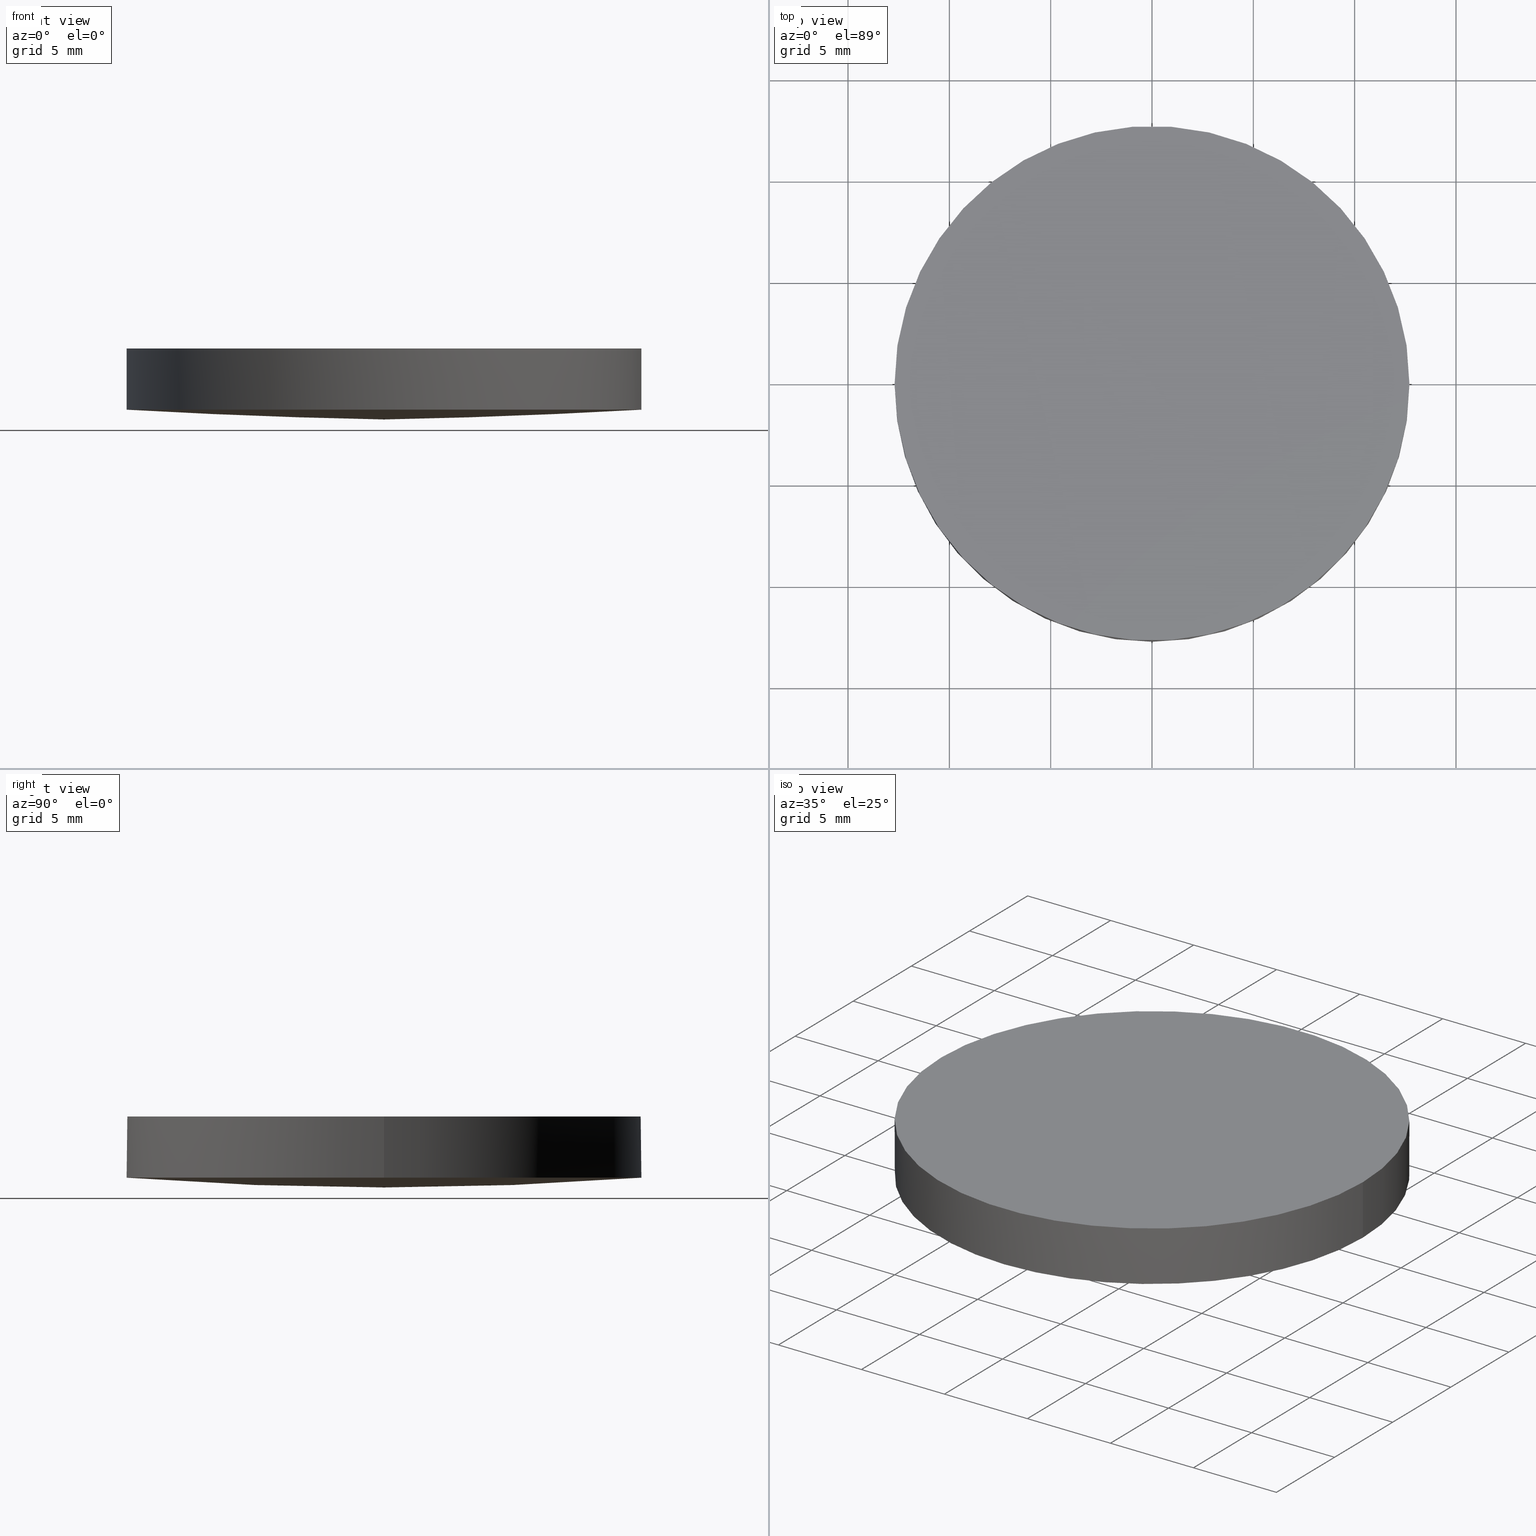
[diagram: canonical four-view strip — front | top / right | iso, engineering-drawing reading convention]
A machine part, canonical four-view strip (front | top / right | iso — engineering-drawing reading convention). The complete STEP part file that produces these views, byte-faithful:
ISO-10303-21;
HEADER;
FILE_DESCRIPTION (( 'STEP AP203' ),
    '1' );
FILE_NAME ('110-5228E CaF2 pl-cx 25.4 F400.STEP',
    '2019-01-03T11:23:20',
    ( '' ),
    ( '' ),
    'SwSTEP 2.0',
    'SolidWorks 2017',
    '' );
FILE_SCHEMA (( 'CONFIG_CONTROL_DESIGN' ));
ENDSEC;

DATA;
#1 = DATE_TIME_ROLE ( 'creation_date' ) ;
#2 = LOCAL_TIME ( 13, 23, 20.00000000000000000, #144 ) ;
#3 = APPROVAL_STATUS ( 'not_yet_approved' ) ;
#4 = CARTESIAN_POINT ( 'NONE',  ( 4.566836338319999000E-014, 12.69999999999989300, 0.4827347065058701400 ) ) ;
#5 = VECTOR ( 'NONE', #23, 1000.000000000000000 ) ;
#6 = UNCERTAINTY_MEASURE_WITH_UNIT (LENGTH_MEASURE( 1.000000000000000100E-005 ), #88, 'distance_accuracy_value', 'NONE');
#7 = CARTESIAN_POINT ( 'NONE',  ( 4.251272293049448900, -12.85210128437011600, 0.4943841095981241800 ) ) ;
#8 = ORIENTED_EDGE ( 'NONE', *, *, #153, .T. ) ;
#9 = DIRECTION ( 'NONE',  ( 1.000000000000000000, 0.0000000000000000000, -0.0000000000000000000 ) ) ;
#10 = CARTESIAN_POINT ( 'NONE',  ( -8.533044335085556000, 4.292490182803529600, -0.002032512706871977000 ) ) ;
#11 = CARTESIAN_POINT ( 'NONE',  ( -12.73829777343129700, -12.85210128437012300, 0.9814825029645646300 ) ) ;
#12 = VERTEX_POINT ( 'NONE', #80 ) ;
#13 =( NAMED_UNIT ( * ) PLANE_ANGLE_UNIT ( ) SI_UNIT ( $, .RADIAN. ) );
#14 = AXIS2_PLACEMENT_3D ( 'NONE', #140, #34, #103 ) ;
#15 = DESIGN_CONTEXT ( 'detailed design', #73, 'design' ) ;
#16 = ORIENTED_EDGE ( 'NONE', *, *, #153, .F. ) ;
#17 = CIRCLE ( 'NONE', #42, 12.69999999999999900 ) ;
#18 = APPROVAL_DATE_TIME ( #25, #192 ) ;
#19 = PERSON_AND_ORGANIZATION_ROLE ( 'design_owner' ) ;
#20 = PERSON_AND_ORGANIZATION_ROLE ( 'creator' ) ;
#21 = CIRCLE ( 'NONE', #112, 12.69999999999999900 ) ;
#22 = APPROVAL_STATUS ( 'not_yet_approved' ) ;
#23 = DIRECTION ( 'NONE',  ( 0.0000000000000000000, 0.0000000000000000000, 1.000000000000000000 ) ) ;
#24 = ORIENTED_EDGE ( 'NONE', *, *, #29, .F. ) ;
#25 = DATE_AND_TIME ( #132, #2 ) ;
#26 = CC_DESIGN_APPROVAL ( #138, ( #40 ) ) ;
#27 = VERTEX_POINT ( 'NONE', #4 ) ;
#28 = CARTESIAN_POINT ( 'NONE',  ( 0.0000000000000000000, 0.0000000000000000000, 167.3000000000000100 ) ) ;
#29 = EDGE_CURVE ( 'NONE', #63, #216, #119, .T. ) ;
#30 = CARTESIAN_POINT ( 'NONE',  ( 4.996003610813200500E-016, 2.442490654175340100E-015, 0.4827347065058740800 ) ) ;
#31 = CARTESIAN_POINT ( 'NONE',  ( -12.78866154361474200, 4.292490182803529600, 0.3239042502452720900 ) ) ;
#32 = ORIENTED_EDGE ( 'NONE', *, *, #110, .T. ) ;
#33 = CARTESIAN_POINT ( 'NONE',  ( -8.499439857995314500, 12.85210128437013200, 0.6568293304935412000 ) ) ;
#34 = DIRECTION ( 'NONE',  ( -0.0000000000000000000, -0.0000000000000000000, -1.000000000000000000 ) ) ;
#35 = PERSON_AND_ORGANIZATION ( #208, #43 ) ;
#36 = COORDINATED_UNIVERSAL_TIME_OFFSET ( 2, 0, .AHEAD. ) ;
#37 = EDGE_LOOP ( 'NONE', ( #32, #124, #220 ) ) ;
#38 = APPLICATION_PROTOCOL_DEFINITION ( 'international standard', 'config_control_design', 1994, #183 ) ;
#39 = LOCAL_TIME ( 13, 23, 20.00000000000000000, #142 ) ;
#40 = PRODUCT_DEFINITION_FORMATION_WITH_SPECIFIED_SOURCE ( 'ANY', '', #77, .NOT_KNOWN. ) ;
#41 = MECHANICAL_CONTEXT ( 'NONE', #183, 'mechanical' ) ;
#42 = AXIS2_PLACEMENT_3D ( 'NONE', #30, #175, #233 ) ;
#43 = ORGANIZATION ( 'UNSPECIFIED', 'UNSPECIFIED', '' ) ;
#44 = CARTESIAN_POINT ( 'NONE',  ( 12.69999999999999900, 2.442490654175340100E-015, 0.4827347065058740800 ) ) ;
#45 = CARTESIAN_POINT ( 'NONE',  ( 4.996003610813200500E-016, 2.442490654175340100E-015, 0.4827347065058740800 ) ) ;
#46 = CARTESIAN_POINT ( 'NONE',  ( 4.996003610813200500E-016, 2.442490654175340100E-015, 0.4827347065058740800 ) ) ;
#47 = CALENDAR_DATE ( 2019, 3, 1 ) ;
#48 = FACE_OUTER_BOUND ( 'NONE', #160, .T. ) ;
#49 = CARTESIAN_POINT ( 'NONE',  ( -8.499439857995303900, -12.85210128437012100, 0.6568293304935412000 ) ) ;
#50 = EDGE_CURVE ( 'NONE', #145, #27, #53, .T. ) ;
#51 =( NAMED_UNIT ( * ) SI_UNIT ( $, .STERADIAN. ) SOLID_ANGLE_UNIT ( ) );
#52 = COORDINATED_UNIVERSAL_TIME_OFFSET ( 2, 0, .AHEAD. ) ;
#53 = CIRCLE ( 'NONE', #226, 167.3000000000000100 ) ;
#54 = APPROVAL_PERSON_ORGANIZATION ( #202, #192, #126 ) ;
#55 = CLOSED_SHELL ( 'NONE', ( #159, #232, #163, #116, #121 ) ) ;
#56 = ORIENTED_EDGE ( 'NONE', *, *, #91, .T. ) ;
#57 = DATE_TIME_ROLE ( 'classification_date' ) ;
#58 = EDGE_LOOP ( 'NONE', ( #149, #235, #71 ) ) ;
#59 = DIRECTION ( 'NONE',  ( 1.000000000000000000, 0.0000000000000000000, 0.0000000000000000000 ) ) ;
#60 = DIRECTION ( 'NONE',  ( -0.0000000000000000000, -0.0000000000000000000, -1.000000000000000000 ) ) ;
#61 = APPROVAL ( #3, 'UNSPECIFIED' ) ;
#62 = DIRECTION ( 'NONE',  ( 1.000000000000000000, 0.0000000000000000000, 0.0000000000000000000 ) ) ;
#63 = VERTEX_POINT ( 'NONE', #97 ) ;
#64 = CARTESIAN_POINT ( 'NONE',  ( 12.78866154361464400, 4.292490182803538400, 0.3239042502452546000 ) ) ;
#65 = CARTESIAN_POINT ( 'NONE',  ( 8.533044335085511600, 4.292490182803535800, -0.002032512706883035800 ) ) ;
#66 = CC_DESIGN_PERSON_AND_ORGANIZATION_ASSIGNMENT ( #186, #19, ( #77 ) ) ;
#67 = PLANE ( 'NONE',  #146 ) ;
#68 = CARTESIAN_POINT ( 'NONE',  ( 8.499439857995271900, -12.85210128437011400, 0.6568293304935302100 ) ) ;
#69 = CARTESIAN_POINT ( 'NONE',  ( 0.0000000000000000000, 0.0000000000000000000, 0.0000000000000000000 ) ) ;
#70 = EDGE_CURVE ( 'NONE', #145, #63, #205, .T. ) ;
#71 = ORIENTED_EDGE ( 'NONE', *, *, #93, .T. ) ;
#72 = ORIENTED_EDGE ( 'NONE', *, *, #128, .T. ) ;
#73 = APPLICATION_CONTEXT ( 'configuration controlled 3d designs of mechanical parts and assemblies' ) ;
#74 =( BOUNDED_SURFACE ( )  B_SPLINE_SURFACE ( 3, 3, ( 
 ( #227, #7, #68, #178 ),
 ( #214, #195, #200, #213 ),
 ( #86, #215, #65, #64 ),
 ( #81, #135, #231, #229 ) ),
 .UNSPECIFIED., .F., .F., .F. ) 
 B_SPLINE_SURFACE_WITH_KNOTS ( ( 4, 4 ),
 ( 4, 4 ),
 ( 0.0000000000000000000, 1.000000000000000000 ),
 ( 0.0000000000000000000, 1.000000000000000000 ),
 .UNSPECIFIED. ) 
 GEOMETRIC_REPRESENTATION_ITEM ( )  RATIONAL_B_SPLINE_SURFACE ( (
 ( 1.000000000000000000, 0.9995131295779148300, 0.9995131295779148300, 1.000000000000000000),
 ( 0.9980299497525477700, 0.9975440384896581100, 0.9975440384896581100, 0.9980299497525477700),
 ( 0.9980299497525477700, 0.9975440384896581100, 0.9975440384896581100, 0.9980299497525477700),
 ( 1.000000000000000000, 0.9995131295779148300, 0.9995131295779148300, 1.000000000000000000) ) ) 
 REPRESENTATION_ITEM ( '' )  SURFACE ( )  );
#75 = ORIENTED_EDGE ( 'NONE', *, *, #78, .F. ) ;
#76 = DIRECTION ( 'NONE',  ( 1.000000000000000000, 0.0000000000000000000, 0.0000000000000000000 ) ) ;
#77 = PRODUCT ( '110-5228E CaF2 pl-cx 25.4 F400', '110-5228E CaF2 pl-cx 25.4 F400', '', ( #41 ) ) ;
#78 = EDGE_CURVE ( 'NONE', #27, #96, #210, .T. ) ;
#79 = PERSON_AND_ORGANIZATION ( #208, #43 ) ;
#80 = CARTESIAN_POINT ( 'NONE',  ( 12.69999999999999900, 2.442490654175340100E-015, 3.500000000000000000 ) ) ;
#81 = CARTESIAN_POINT ( 'NONE',  ( 4.561202874315415500E-014, 12.85210128437013400, 0.4943841095981227300 ) ) ;
#82 = CARTESIAN_POINT ( 'NONE',  ( -12.78866154361473800, -4.292490182803522500, 0.3239042502452730300 ) ) ;
#83 = FACE_OUTER_BOUND ( 'NONE', #58, .T. ) ;
#84 = CALENDAR_DATE ( 2019, 3, 1 ) ;
#85 = AXIS2_PLACEMENT_3D ( 'NONE', #115, #148, #59 ) ;
#86 = CARTESIAN_POINT ( 'NONE',  ( 4.878348029230784500E-014, 4.292490182803534000, -0.1651199978920794300 ) ) ;
#87 = CARTESIAN_POINT ( 'NONE',  ( 4.996003610813200500E-016, 2.442490654175340100E-015, 0.4827347065058740800 ) ) ;
#88 =( LENGTH_UNIT ( ) NAMED_UNIT ( * ) SI_UNIT ( .MILLI., .METRE. ) );
#89 = SHAPE_DEFINITION_REPRESENTATION ( #194, #206 ) ;
#90 = DATE_AND_TIME ( #120, #39 ) ;
#91 = EDGE_CURVE ( 'NONE', #216, #12, #21, .T. ) ;
#92 = APPLICATION_PROTOCOL_DEFINITION ( 'international standard', 'config_control_design', 1994, #73 ) ;
#93 = EDGE_CURVE ( 'NONE', #63, #27, #122, .T. ) ;
#94 = PERSON_AND_ORGANIZATION_ROLE ( 'design_supplier' ) ;
#95 = PERSON_AND_ORGANIZATION_ROLE ( 'creator' ) ;
#96 = VERTEX_POINT ( 'NONE', #44 ) ;
#97 = CARTESIAN_POINT ( 'NONE',  ( -12.69999999999999900, 3.997792089092478900E-015, 0.4827347065058740800 ) ) ;
#98 = DIRECTION ( 'NONE',  ( -0.0000000000000000000, -0.0000000000000000000, -1.000000000000000000 ) ) ;
#99 = APPROVAL_PERSON_ORGANIZATION ( #35, #61, #170 ) ;
#100 = DATE_AND_TIME ( #104, #221 ) ;
#101 = AXIS2_PLACEMENT_3D ( 'NONE', #46, #211, #76 ) ;
#102 = ORIENTED_EDGE ( 'NONE', *, *, #70, .F. ) ;
#103 = DIRECTION ( 'NONE',  ( 1.000000000000000000, 0.0000000000000000000, 0.0000000000000000000 ) ) ;
#104 = CALENDAR_DATE ( 2019, 3, 1 ) ;
#105 = CARTESIAN_POINT ( 'NONE',  ( -4.268080669220456300, -4.292490182803518000, -0.1651199978920573900 ) ) ;
#106 = CARTESIAN_POINT ( 'NONE',  ( 4.996003610813200500E-016, 2.442490654175340100E-015, 3.500000000000000000 ) ) ;
#107 = CARTESIAN_POINT ( 'NONE',  ( 0.0000000000000000000, 26.11199999999999800, 3.500000000000000000 ) ) ;
#108 = ORIENTED_EDGE ( 'NONE', *, *, #91, .F. ) ;
#109 = DIRECTION ( 'NONE',  ( 1.000000000000000000, 0.0000000000000000000, 0.0000000000000000000 ) ) ;
#110 = EDGE_CURVE ( 'NONE', #96, #145, #17, .T. ) ;
#111 = ORIENTED_EDGE ( 'NONE', *, *, #110, .F. ) ;
#112 = AXIS2_PLACEMENT_3D ( 'NONE', #152, #60, #193 ) ;
#113 = AXIS2_PLACEMENT_3D ( 'NONE', #106, #174, #62 ) ;
#114 = CC_DESIGN_DATE_AND_TIME_ASSIGNMENT ( #172, #1, ( #117 ) ) ;
#115 = CARTESIAN_POINT ( 'NONE',  ( 4.996003610813200500E-016, 2.442490654175340100E-015, 0.4827347065058740800 ) ) ;
#116 = ADVANCED_FACE ( 'NONE', ( #201 ), #197, .T. ) ;
#117 = PRODUCT_DEFINITION ( 'UNKNOWN', '', #40, #15 ) ;
#118 = CARTESIAN_POINT ( 'NONE',  ( 1.214306433183765000E-014, -4.292490182803518000, -0.1651199978920570900 ) ) ;
#119 = LINE ( 'NONE', #133, #5 ) ;
#120 = CALENDAR_DATE ( 2019, 3, 1 ) ;
#121 = ADVANCED_FACE ( 'NONE', ( #48 ), #67, .T. ) ;
#122 = CIRCLE ( 'NONE', #14, 12.69999999999999900 ) ;
#123 = AXIS2_PLACEMENT_3D ( 'NONE', #69, #218, #162 ) ;
#124 = ORIENTED_EDGE ( 'NONE', *, *, #50, .T. ) ;
#125 = CC_DESIGN_PERSON_AND_ORGANIZATION_ASSIGNMENT ( #230, #222, ( #219 ) ) ;
#126 = APPROVAL_ROLE ( '' ) ;
#127 = PERSON_AND_ORGANIZATION ( #208, #43 ) ;
#128 = EDGE_CURVE ( 'NONE', #96, #12, #177, .T. ) ;
#129 = SECURITY_CLASSIFICATION_LEVEL ( 'unclassified' ) ;
#130 = CC_DESIGN_SECURITY_CLASSIFICATION ( #219, ( #40 ) ) ;
#131 = EDGE_LOOP ( 'NONE', ( #188, #169, #56, #154, #75 ) ) ;
#132 = CALENDAR_DATE ( 2019, 3, 1 ) ;
#133 = CARTESIAN_POINT ( 'NONE',  ( -12.69999999999999900, 3.997792089092478900E-015, 0.4827347065058740800 ) ) ;
#134 = COORDINATED_UNIVERSAL_TIME_OFFSET ( 2, 0, .AHEAD. ) ;
#135 = CARTESIAN_POINT ( 'NONE',  ( 4.251272293049440900, 12.85210128437013700, 0.4943841095981241800 ) ) ;
#136 = FACE_OUTER_BOUND ( 'NONE', #131, .T. ) ;
#137 = CARTESIAN_POINT ( 'NONE',  ( -4.268080669220459800, 4.292490182803530500, -0.1651199978920584700 ) ) ;
#138 = APPROVAL ( #22, 'UNSPECIFIED' ) ;
#139 = CARTESIAN_POINT ( 'NONE',  ( -12.73829777343130800, 12.85210128437012900, 0.9814825029645646300 ) ) ;
#140 = CARTESIAN_POINT ( 'NONE',  ( 4.996003610813200500E-016, 2.442490654175340100E-015, 0.4827347065058740800 ) ) ;
#141 = LOCAL_TIME ( 13, 23, 20.00000000000000000, #52 ) ;
#142 = COORDINATED_UNIVERSAL_TIME_OFFSET ( 2, 0, .AHEAD. ) ;
#143 = EDGE_LOOP ( 'NONE', ( #24, #102, #111, #72, #8 ) ) ;
#144 = COORDINATED_UNIVERSAL_TIME_OFFSET ( 2, 0, .AHEAD. ) ;
#145 = VERTEX_POINT ( 'NONE', #161 ) ;
#146 = AXIS2_PLACEMENT_3D ( 'NONE', #107, #156, #9 ) ;
#147 = PRODUCT_RELATED_PRODUCT_CATEGORY ( 'detail', '', ( #77 ) ) ;
#148 = DIRECTION ( 'NONE',  ( -0.0000000000000000000, -0.0000000000000000000, -1.000000000000000000 ) ) ;
#149 = ORIENTED_EDGE ( 'NONE', *, *, #50, .F. ) ;
#150 = DATE_AND_TIME ( #47, #141 ) ;
#151 = CC_DESIGN_PERSON_AND_ORGANIZATION_ASSIGNMENT ( #127, #20, ( #117 ) ) ;
#152 = CARTESIAN_POINT ( 'NONE',  ( 4.996003610813200500E-016, 2.442490654175340100E-015, 3.500000000000000000 ) ) ;
#153 = EDGE_CURVE ( 'NONE', #12, #216, #204, .T. ) ;
#154 = ORIENTED_EDGE ( 'NONE', *, *, #128, .F. ) ;
#155 = CARTESIAN_POINT ( 'NONE',  ( 12.69999999999999900, 2.442490654175340100E-015, 0.4827347065058740800 ) ) ;
#156 = DIRECTION ( 'NONE',  ( 0.0000000000000000000, 0.0000000000000000000, 1.000000000000000000 ) ) ;
#157 = CARTESIAN_POINT ( 'NONE',  ( 8.673617379884033900E-015, 4.292490182803533100, -0.1651199978920582000 ) ) ;
#158 = CARTESIAN_POINT ( 'NONE',  ( -4.251272293049442700, 12.85210128437013400, 0.4943841095981438300 ) ) ;
#159 = ADVANCED_FACE ( 'NONE', ( #165 ), #74, .T. ) ;
#160 = EDGE_LOOP ( 'NONE', ( #16, #108 ) ) ;
#161 = CARTESIAN_POINT ( 'NONE',  ( 5.449188795093373900E-014, -12.69999999999989300, 0.4827347065058701400 ) ) ;
#162 = DIRECTION ( 'NONE',  ( 1.000000000000000000, 0.0000000000000000000, 0.0000000000000000000 ) ) ;
#163 = ADVANCED_FACE ( 'NONE', ( #83 ), #171, .T. ) ;
#164 = CC_DESIGN_PERSON_AND_ORGANIZATION_ASSIGNMENT ( #191, #95, ( #40 ) ) ;
#165 = FACE_OUTER_BOUND ( 'NONE', #37, .T. ) ;
#166 = AXIS2_PLACEMENT_3D ( 'NONE', #87, #203, #109 ) ;
#167 = LOCAL_TIME ( 13, 23, 20.00000000000000000, #134 ) ;
#168 = AXIS2_PLACEMENT_3D ( 'NONE', #45, #98, #225 ) ;
#169 = ORIENTED_EDGE ( 'NONE', *, *, #29, .T. ) ;
#170 = APPROVAL_ROLE ( '' ) ;
#171 =( BOUNDED_SURFACE ( )  B_SPLINE_SURFACE ( 3, 3, ( 
 ( #11, #49, #198, #176 ),
 ( #82, #217, #105, #118 ),
 ( #31, #10, #137, #157 ),
 ( #139, #33, #158, #182 ) ),
 .UNSPECIFIED., .F., .F., .F. ) 
 B_SPLINE_SURFACE_WITH_KNOTS ( ( 4, 4 ),
 ( 4, 4 ),
 ( 0.0000000000000000000, 1.000000000000000000 ),
 ( 0.0000000000000000000, 1.000000000000000000 ),
 .UNSPECIFIED. ) 
 GEOMETRIC_REPRESENTATION_ITEM ( )  RATIONAL_B_SPLINE_SURFACE ( (
 ( 1.000000000000000000, 0.9995131295779148300, 0.9995131295779148300, 1.000000000000000000),
 ( 0.9980299497525477700, 0.9975440384896581100, 0.9975440384896581100, 0.9980299497525477700),
 ( 0.9980299497525477700, 0.9975440384896581100, 0.9975440384896581100, 0.9980299497525477700),
 ( 1.000000000000000000, 0.9995131295779148300, 0.9995131295779148300, 1.000000000000000000) ) ) 
 REPRESENTATION_ITEM ( '' )  SURFACE ( )  );
#172 = DATE_AND_TIME ( #84, #167 ) ;
#173 = DIRECTION ( 'NONE',  ( 1.000000000000000000, 3.473828569973949900E-016, 3.002094871832189900E-016 ) ) ;
#174 = DIRECTION ( 'NONE',  ( -0.0000000000000000000, -0.0000000000000000000, -1.000000000000000000 ) ) ;
#175 = DIRECTION ( 'NONE',  ( -0.0000000000000000000, -0.0000000000000000000, -1.000000000000000000 ) ) ;
#176 = CARTESIAN_POINT ( 'NONE',  ( 1.387778780781445700E-014, -12.85210128437011800, 0.4943841095981441100 ) ) ;
#177 = LINE ( 'NONE', #155, #212 ) ;
#178 = CARTESIAN_POINT ( 'NONE',  ( 12.73829777343121200, -12.85210128437011300, 0.9814825029645473100 ) ) ;
#179 = PERSON_AND_ORGANIZATION ( #208, #43 ) ;
#180 = MANIFOLD_SOLID_BREP ( 'Imported1', #55 ) ;
#181 = CC_DESIGN_APPROVAL ( #61, ( #117 ) ) ;
#182 = CARTESIAN_POINT ( 'NONE',  ( 3.469446951953614200E-015, 12.85210128437013400, 0.4943841095981438800 ) ) ;
#183 = APPLICATION_CONTEXT ( 'configuration controlled 3d designs of mechanical parts and assemblies' ) ;
#184 = CC_DESIGN_PERSON_AND_ORGANIZATION_ASSIGNMENT ( #179, #94, ( #40 ) ) ;
#185 = CYLINDRICAL_SURFACE ( 'NONE', #166, 12.69999999999999900 ) ;
#186 = PERSON_AND_ORGANIZATION ( #208, #43 ) ;
#187 = APPROVAL_DATE_TIME ( #150, #61 ) ;
#188 = ORIENTED_EDGE ( 'NONE', *, *, #93, .F. ) ;
#189 = APPROVAL_PERSON_ORGANIZATION ( #79, #138, #223 ) ;
#190 = DIRECTION ( 'NONE',  ( 3.473828569973949900E-016, -1.000000000000000000, 0.0000000000000000000 ) ) ;
#191 = PERSON_AND_ORGANIZATION ( #208, #43 ) ;
#192 = APPROVAL ( #207, 'UNSPECIFIED' ) ;
#193 = DIRECTION ( 'NONE',  ( 1.000000000000000000, 0.0000000000000000000, 0.0000000000000000000 ) ) ;
#194 = PRODUCT_DEFINITION_SHAPE ( 'NONE', 'NONE',  #117 ) ;
#195 = CARTESIAN_POINT ( 'NONE',  ( 4.268080669220469600, -4.292490182803513600, -0.1651199978920772100 ) ) ;
#196 = CARTESIAN_POINT ( 'NONE',  ( -12.69999999999999900, 3.997792089092478900E-015, 3.500000000000000000 ) ) ;
#197 = CYLINDRICAL_SURFACE ( 'NONE', #101, 12.69999999999999900 ) ;
#198 = CARTESIAN_POINT ( 'NONE',  ( -4.251272293049432900, -12.85210128437012000, 0.4943841095981439900 ) ) ;
#199 = DIRECTION ( 'NONE',  ( 0.0000000000000000000, 0.0000000000000000000, 1.000000000000000000 ) ) ;
#200 = CARTESIAN_POINT ( 'NONE',  ( 8.533044335085515200, -4.292490182803512700, -0.002032512706882005800 ) ) ;
#201 = FACE_OUTER_BOUND ( 'NONE', #143, .T. ) ;
#202 = PERSON_AND_ORGANIZATION ( #208, #43 ) ;
#203 = DIRECTION ( 'NONE',  ( 0.0000000000000000000, 0.0000000000000000000, 1.000000000000000000 ) ) ;
#204 = CIRCLE ( 'NONE', #113, 12.69999999999999900 ) ;
#205 = CIRCLE ( 'NONE', #85, 12.69999999999999900 ) ;
#206 = ADVANCED_BREP_SHAPE_REPRESENTATION ( '110-5228E CaF2 pl-cx 25.4 F400', ( #180, #123 ), #234 ) ;
#207 = APPROVAL_STATUS ( 'not_yet_approved' ) ;
#208 = PERSON ( 'UNSPECIFIED', 'UNSPECIFIED', 'UNSPECIFIED', ('UNSPECIFIED'), ('UNSPECIFIED'), ('UNSPECIFIED') ) ;
#209 = CC_DESIGN_DATE_AND_TIME_ASSIGNMENT ( #90, #57, ( #219 ) ) ;
#210 = CIRCLE ( 'NONE', #168, 12.69999999999999900 ) ;
#211 = DIRECTION ( 'NONE',  ( 0.0000000000000000000, 0.0000000000000000000, 1.000000000000000000 ) ) ;
#212 = VECTOR ( 'NONE', #199, 1000.000000000000000 ) ;
#213 = CARTESIAN_POINT ( 'NONE',  ( 12.78866154361464600, -4.292490182803512700, 0.3239042502452556000 ) ) ;
#214 = CARTESIAN_POINT ( 'NONE',  ( 5.176575529897896200E-014, -4.292490182803517100, -0.1651199978920784600 ) ) ;
#215 = CARTESIAN_POINT ( 'NONE',  ( 4.268080669220465100, 4.292490182803534900, -0.1651199978920781800 ) ) ;
#216 = VERTEX_POINT ( 'NONE', #196 ) ;
#217 = CARTESIAN_POINT ( 'NONE',  ( -8.533044335085552500, -4.292490182803518900, -0.002032512706871001200 ) ) ;
#218 = DIRECTION ( 'NONE',  ( 0.0000000000000000000, 0.0000000000000000000, 1.000000000000000000 ) ) ;
#219 = SECURITY_CLASSIFICATION ( '', '', #129 ) ;
#220 = ORIENTED_EDGE ( 'NONE', *, *, #78, .T. ) ;
#221 = LOCAL_TIME ( 13, 23, 20.00000000000000000, #36 ) ;
#222 = PERSON_AND_ORGANIZATION_ROLE ( 'classification_officer' ) ;
#223 = APPROVAL_ROLE ( '' ) ;
#224 = APPROVAL_DATE_TIME ( #100, #138 ) ;
#225 = DIRECTION ( 'NONE',  ( 1.000000000000000000, 0.0000000000000000000, 0.0000000000000000000 ) ) ;
#226 = AXIS2_PLACEMENT_3D ( 'NONE', #28, #173, #190 ) ;
#227 = CARTESIAN_POINT ( 'NONE',  ( 5.454122806832292800E-014, -12.85210128437011800, 0.4943841095981227300 ) ) ;
#228 = CC_DESIGN_APPROVAL ( #192, ( #219 ) ) ;
#229 = CARTESIAN_POINT ( 'NONE',  ( 12.73829777343120300, 12.85210128437013900, 0.9814825029645473100 ) ) ;
#230 = PERSON_AND_ORGANIZATION ( #208, #43 ) ;
#231 = CARTESIAN_POINT ( 'NONE',  ( 8.499439857995261200, 12.85210128437013900, 0.6568293304935302100 ) ) ;
#232 = ADVANCED_FACE ( 'NONE', ( #136 ), #185, .T. ) ;
#233 = DIRECTION ( 'NONE',  ( 1.000000000000000000, 0.0000000000000000000, 0.0000000000000000000 ) ) ;
#234 =( GEOMETRIC_REPRESENTATION_CONTEXT ( 3 ) GLOBAL_UNCERTAINTY_ASSIGNED_CONTEXT ( ( #6 ) ) GLOBAL_UNIT_ASSIGNED_CONTEXT ( ( #88, #13, #51 ) ) REPRESENTATION_CONTEXT ( 'NONE', 'WORKASPACE' ) );
#235 = ORIENTED_EDGE ( 'NONE', *, *, #70, .T. ) ;
ENDSEC;
END-ISO-10303-21;
